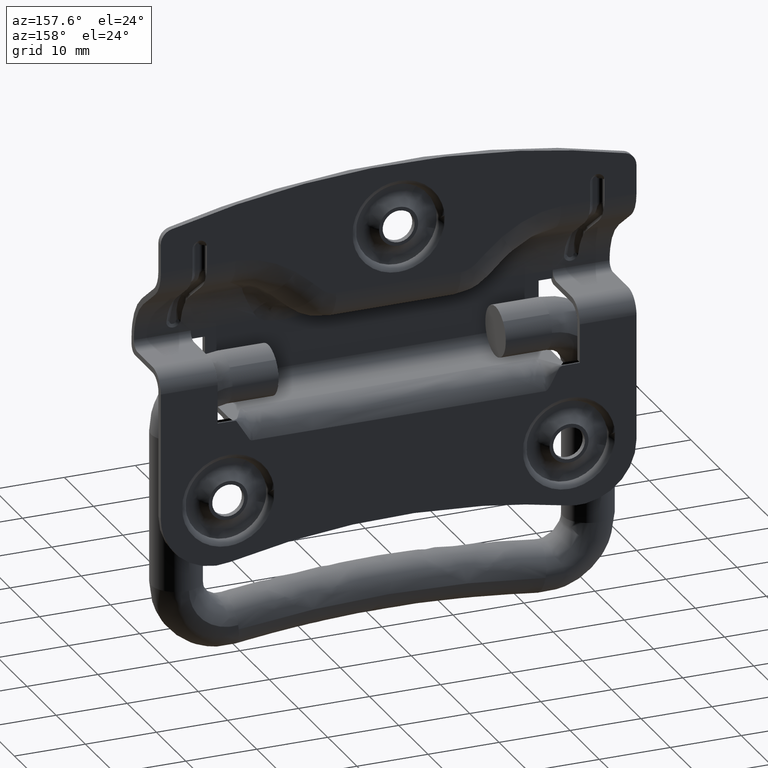
[diagram: clean part render]
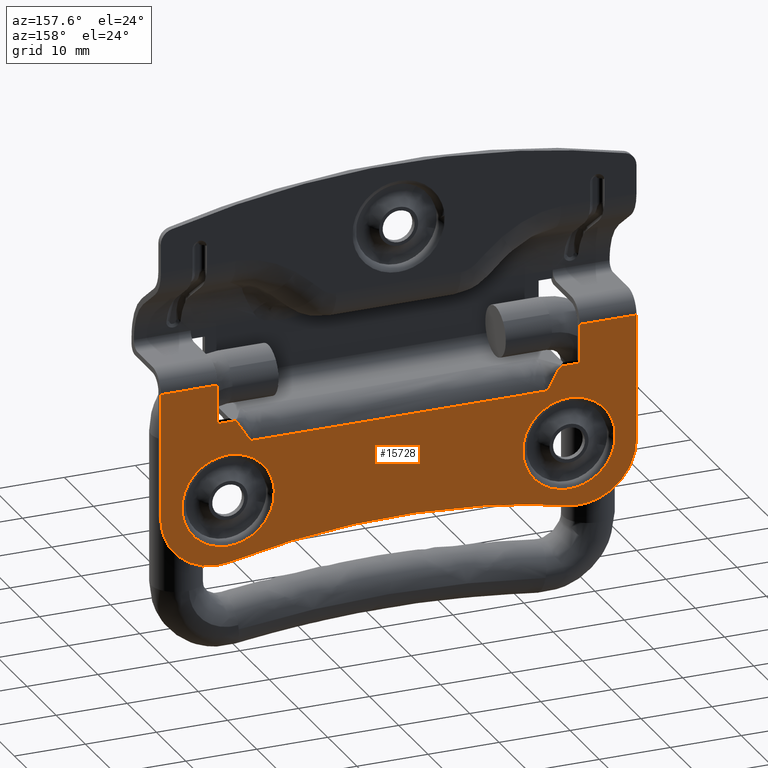
[diagram: same view with one face highlighted and labeled with its STEP entity id]
A machine part, auxiliary view. The second image highlights one B-rep face of the part: STEP entity #15728.
In plain terms, the highlighted face is a freeform B-spline surface patch.
Its self-contained STEP definition (entity closure, byte-faithful):
#3528=CARTESIAN_POINT('',(30.499486549826340,5.699999999999829,-15.081679257638990));
#3529=VERTEX_POINT('',#3528);
#3543=CARTESIAN_POINT('',(24.0,5.699999999999901,-21.499999999999702));
#3544=VERTEX_POINT('',#3543);
#3545=CARTESIAN_POINT('',(24.0,5.699999999999901,-21.499999999999702));
#3546=CARTESIAN_POINT('',(30.418827541667767,5.699999999999899,-21.499999999999698));
#3547=CARTESIAN_POINT('',(30.499486549826340,5.699999999999829,-15.081679257638990));
#3555=(BOUNDED_CURVE()B_SPLINE_CURVE(2,(#3545,#3546,#3547),.UNSPECIFIED.,.F.,.U.)B_SPLINE_CURVE_WITH_KNOTS((3,3),(0.0,0.247784295846942),.UNSPECIFIED.)CURVE()GEOMETRIC_REPRESENTATION_ITEM()RATIONAL_B_SPLINE_CURVE((1.0,0.709702640071857,0.994854295471884))REPRESENTATION_ITEM(''));
#3556=EDGE_CURVE('',#3544,#3529,#3555,.T.);
#3558=CARTESIAN_POINT('',(17.515823357008809,5.699999999999829,-14.546733880854390));
#3559=VERTEX_POINT('',#3558);
#3560=CARTESIAN_POINT('',(17.515823357008809,5.699999999999829,-14.546733880854394));
#3561=CARTESIAN_POINT('',(17.500000000000004,5.699999999999901,-14.773090746344593));
#3562=CARTESIAN_POINT('',(17.500000000000000,5.699999999999901,-14.999999999999700));
#3563=CARTESIAN_POINT('',(17.500000000000000,5.699999999999900,-21.499999999999702));
#3564=CARTESIAN_POINT('',(24.0,5.699999999999901,-21.499999999999702));
#3572=(BOUNDED_CURVE()B_SPLINE_CURVE(2,(#3560,#3561,#3562,#3563,#3564),.UNSPECIFIED.,.F.,.U.)B_SPLINE_CURVE_WITH_KNOTS((3,2,3),(0.737833686510321,0.750000000000000,1.0),.UNSPECIFIED.)CURVE()GEOMETRIC_REPRESENTATION_ITEM()RATIONAL_B_SPLINE_CURVE((0.972879876334583,0.985746277123657,1.0,0.707106781186547,1.0))REPRESENTATION_ITEM(''));
#3573=EDGE_CURVE('',#3559,#3544,#3572,.T.);
#3617=CARTESIAN_POINT('',(24.0,5.699999999999901,-8.499999999999702));
#3618=VERTEX_POINT('',#3617);
#3619=CARTESIAN_POINT('',(24.0,5.699999999999901,-8.499999999999702));
#3620=CARTESIAN_POINT('',(17.938510493643680,5.699999999999900,-8.499999999999703));
#3621=CARTESIAN_POINT('',(17.515823357008806,5.699999999999829,-14.546733880854388));
#3629=(BOUNDED_CURVE()B_SPLINE_CURVE(2,(#3619,#3620,#3621),.UNSPECIFIED.,.F.,.U.)B_SPLINE_CURVE_WITH_KNOTS((3,3),(0.500000000000000,0.737833686510320),.UNSPECIFIED.)CURVE()GEOMETRIC_REPRESENTATION_ITEM()RATIONAL_B_SPLINE_CURVE((1.0,0.721360504062891,0.972879876334583))REPRESENTATION_ITEM(''));
#3630=EDGE_CURVE('',#3618,#3559,#3629,.T.);
#3632=CARTESIAN_POINT('',(30.499486549826347,5.699999999999829,-15.081679257638994));
#3633=CARTESIAN_POINT('',(30.499999999999996,5.699999999999901,-15.040841243329083));
#3634=CARTESIAN_POINT('',(30.500000000000000,5.699999999999901,-14.999999999999700));
#3635=CARTESIAN_POINT('',(30.500000000000004,5.699999999999900,-8.499999999999702));
#3636=CARTESIAN_POINT('',(24.0,5.699999999999901,-8.499999999999702));
#3644=(BOUNDED_CURVE()B_SPLINE_CURVE(2,(#3632,#3633,#3634,#3635,#3636),.UNSPECIFIED.,.F.,.U.)B_SPLINE_CURVE_WITH_KNOTS((3,2,3),(0.247784295846942,0.250000000000000,0.500000000000000),.UNSPECIFIED.)CURVE()GEOMETRIC_REPRESENTATION_ITEM()RATIONAL_B_SPLINE_CURVE((0.994854295471884,0.997404141114690,1.0,0.707106781186547,1.0))REPRESENTATION_ITEM(''));
#3645=EDGE_CURVE('',#3529,#3618,#3644,.T.);
#4298=CARTESIAN_POINT('',(-17.500513450173660,5.699999999999829,-15.081679257638990));
#4299=VERTEX_POINT('',#4298);
#4313=CARTESIAN_POINT('',(-24.0,5.699999999999901,-21.499999999999702));
#4314=VERTEX_POINT('',#4313);
#4315=CARTESIAN_POINT('',(-24.0,5.699999999999901,-21.499999999999702));
#4316=CARTESIAN_POINT('',(-17.581172458332240,5.699999999999900,-21.499999999999709));
#4317=CARTESIAN_POINT('',(-17.500513450173656,5.699999999999829,-15.081679257638998));
#4325=(BOUNDED_CURVE()B_SPLINE_CURVE(2,(#4315,#4316,#4317),.UNSPECIFIED.,.F.,.U.)B_SPLINE_CURVE_WITH_KNOTS((3,3),(0.0,0.247784295846942),.UNSPECIFIED.)CURVE()GEOMETRIC_REPRESENTATION_ITEM()RATIONAL_B_SPLINE_CURVE((1.0,0.709702640071858,0.994854295471883))REPRESENTATION_ITEM(''));
#4326=EDGE_CURVE('',#4314,#4299,#4325,.T.);
#4328=CARTESIAN_POINT('',(-30.484176642991191,5.699999999999829,-14.546733880854390));
#4329=VERTEX_POINT('',#4328);
#4330=CARTESIAN_POINT('',(-30.484176642991198,5.699999999999829,-14.546733880854394));
#4331=CARTESIAN_POINT('',(-30.500000000000000,5.699999999999901,-14.773090746344593));
#4332=CARTESIAN_POINT('',(-30.500000000000000,5.699999999999901,-14.999999999999700));
#4333=CARTESIAN_POINT('',(-30.500000000000004,5.699999999999900,-21.499999999999702));
#4334=CARTESIAN_POINT('',(-24.0,5.699999999999901,-21.499999999999702));
#4342=(BOUNDED_CURVE()B_SPLINE_CURVE(2,(#4330,#4331,#4332,#4333,#4334),.UNSPECIFIED.,.F.,.U.)B_SPLINE_CURVE_WITH_KNOTS((3,2,3),(0.737833686510321,0.750000000000000,1.0),.UNSPECIFIED.)CURVE()GEOMETRIC_REPRESENTATION_ITEM()RATIONAL_B_SPLINE_CURVE((0.972879876334583,0.985746277123657,1.0,0.707106781186547,1.0))REPRESENTATION_ITEM(''));
#4343=EDGE_CURVE('',#4329,#4314,#4342,.T.);
#4387=CARTESIAN_POINT('',(-24.0,5.699999999999901,-8.499999999999702));
#4388=VERTEX_POINT('',#4387);
#4389=CARTESIAN_POINT('',(-24.0,5.699999999999901,-8.499999999999702));
#4390=CARTESIAN_POINT('',(-30.061489506356317,5.699999999999900,-8.499999999999703));
#4391=CARTESIAN_POINT('',(-30.484176642991194,5.699999999999829,-14.546733880854388));
#4399=(BOUNDED_CURVE()B_SPLINE_CURVE(2,(#4389,#4390,#4391),.UNSPECIFIED.,.F.,.U.)B_SPLINE_CURVE_WITH_KNOTS((3,3),(0.500000000000000,0.737833686510320),.UNSPECIFIED.)CURVE()GEOMETRIC_REPRESENTATION_ITEM()RATIONAL_B_SPLINE_CURVE((1.0,0.721360504062891,0.972879876334583))REPRESENTATION_ITEM(''));
#4400=EDGE_CURVE('',#4388,#4329,#4399,.T.);
#4402=CARTESIAN_POINT('',(-17.500513450173663,5.699999999999829,-15.081679257638994));
#4403=CARTESIAN_POINT('',(-17.499999999999996,5.699999999999900,-15.040841243329083));
#4404=CARTESIAN_POINT('',(-17.500000000000000,5.699999999999901,-14.999999999999700));
#4405=CARTESIAN_POINT('',(-17.500000000000000,5.699999999999900,-8.499999999999702));
#4406=CARTESIAN_POINT('',(-24.0,5.699999999999901,-8.499999999999702));
#4414=(BOUNDED_CURVE()B_SPLINE_CURVE(2,(#4402,#4403,#4404,#4405,#4406),.UNSPECIFIED.,.F.,.U.)B_SPLINE_CURVE_WITH_KNOTS((3,2,3),(0.247784295846942,0.250000000000000,0.500000000000000),.UNSPECIFIED.)CURVE()GEOMETRIC_REPRESENTATION_ITEM()RATIONAL_B_SPLINE_CURVE((0.994854295471884,0.997404141114690,1.0,0.707106781186547,1.0))REPRESENTATION_ITEM(''));
#4415=EDGE_CURVE('',#4299,#4388,#4414,.T.);
#5387=CARTESIAN_POINT('',(-33.500000000000000,5.699999999999930,-16.000238447630402));
#5388=VERTEX_POINT('',#5387);
#5394=CARTESIAN_POINT('',(-23.771186440678001,5.699999999999930,-23.811205332536801));
#5395=VERTEX_POINT('',#5394);
#5396=CARTESIAN_POINT('',(-33.500000000000000,5.699999999999930,-16.000238447630402));
#5397=CARTESIAN_POINT('',(-33.500000000000007,5.699999999999930,-19.836637631150399));
#5398=CARTESIAN_POINT('',(-30.508467406573789,5.699999999999930,-22.238447664808682));
#5399=CARTESIAN_POINT('',(-27.516934813147579,5.699999999999930,-24.640257698466957));
#5400=CARTESIAN_POINT('',(-23.771186440678001,5.699999999999930,-23.811205332536801));
#5408=(BOUNDED_CURVE()B_SPLINE_CURVE(2,(#5396,#5397,#5398,#5399,#5400),.UNSPECIFIED.,.F.,.U.)B_SPLINE_CURVE_WITH_KNOTS((3,2,3),(0.0,0.500000000000000,1.0),.UNSPECIFIED.)CURVE()GEOMETRIC_REPRESENTATION_ITEM()RATIONAL_B_SPLINE_CURVE((1.0,0.901681325586186,1.0,0.901681325586186,1.0))REPRESENTATION_ITEM(''));
#5409=EDGE_CURVE('',#5388,#5395,#5408,.T.);
#5434=CARTESIAN_POINT('',(23.771186440677951,5.699999999999930,-23.811205332536801));
#5435=VERTEX_POINT('',#5434);
#5436=CARTESIAN_POINT('',(23.771186440677951,5.699999999999930,-23.811205332536801));
#5437=CARTESIAN_POINT('',(4.857226E-014,5.699999999999930,-18.549891330652347));
#5438=CARTESIAN_POINT('',(-23.771186440678001,5.699999999999930,-23.811205332536801));
#5446=(BOUNDED_CURVE()B_SPLINE_CURVE(2,(#5436,#5437,#5438),.UNSPECIFIED.,.F.,.U.)CURVE()GEOMETRIC_REPRESENTATION_ITEM()QUASI_UNIFORM_CURVE()RATIONAL_B_SPLINE_CURVE((1.0,0.976370860613299,1.0))REPRESENTATION_ITEM(''));
#5447=EDGE_CURVE('',#5435,#5395,#5446,.T.);
#5504=CARTESIAN_POINT('',(33.500000000000000,5.699999999999930,-16.000238447630402));
#5505=VERTEX_POINT('',#5504);
#5506=CARTESIAN_POINT('',(23.771186440677951,5.699999999999930,-23.811205332536790));
#5507=CARTESIAN_POINT('',(27.516934813147547,5.699999999999930,-24.640257698466968));
#5508=CARTESIAN_POINT('',(30.508467406573772,5.699999999999930,-22.238447664808689));
#5509=CARTESIAN_POINT('',(33.500000000000000,5.699999999999930,-19.836637631150413));
#5510=CARTESIAN_POINT('',(33.500000000000000,5.699999999999930,-16.000238447630402));
#5518=(BOUNDED_CURVE()B_SPLINE_CURVE(2,(#5506,#5507,#5508,#5509,#5510),.UNSPECIFIED.,.F.,.U.)B_SPLINE_CURVE_WITH_KNOTS((3,2,3),(0.0,0.500000000000000,1.0),.UNSPECIFIED.)CURVE()GEOMETRIC_REPRESENTATION_ITEM()RATIONAL_B_SPLINE_CURVE((1.0,0.901681325586186,1.0,0.901681325586186,1.0))REPRESENTATION_ITEM(''));
#5519=EDGE_CURVE('',#5435,#5505,#5518,.T.);
#5752=CARTESIAN_POINT('',(25.500000000000000,5.699999999999901,-3.800000000000000));
#5753=VERTEX_POINT('',#5752);
#5769=CARTESIAN_POINT('',(-25.500000000000000,5.700000000000000,-3.800000000000000));
#5770=VERTEX_POINT('',#5769);
#5771=CARTESIAN_POINT('',(-25.500000000000011,5.700000000000000,-3.800000000000000));
#5772=CARTESIAN_POINT('',(-24.690476190476229,5.700000000000000,-3.800000000000000));
#5773=CARTESIAN_POINT('',(-23.880952380952440,5.700000000000000,-3.800000000000000));
#5774=CARTESIAN_POINT('',(-23.071428571428651,5.700000000000000,-3.800000000000000));
#5775=CARTESIAN_POINT('',(-22.261904761904798,5.700000000000000,-3.800000000000000));
#5776=CARTESIAN_POINT('',(-21.452380952380999,5.700000000000000,-7.0));
#5777=CARTESIAN_POINT('',(-20.642857142857199,5.700000000000000,-7.0));
#5778=CARTESIAN_POINT('',(-6.880952380952430,5.700000000000000,-7.0));
#5779=CARTESIAN_POINT('',(6.880952380952320,5.700000000000000,-7.0));
#5780=CARTESIAN_POINT('',(20.642857142857100,5.700000000000000,-7.0));
#5781=CARTESIAN_POINT('',(21.452380952380899,5.700000000000000,-7.0));
#5782=CARTESIAN_POINT('',(22.261904761904699,5.700000000000000,-3.800000000000000));
#5783=CARTESIAN_POINT('',(23.071428571428552,5.700000000000000,-3.800000000000000));
#5784=CARTESIAN_POINT('',(23.880952380952369,5.700000000000000,-3.800000000000000));
#5785=CARTESIAN_POINT('',(24.690476190476179,5.700000000000000,-3.800000000000000));
#5786=CARTESIAN_POINT('',(25.500000000000000,5.699999999999901,-3.800000000000000));
#5787=B_SPLINE_CURVE_WITH_KNOTS('',3,(#5771,#5772,#5773,#5774,#5775,#5776,#5777,#5778,#5779,#5780,#5781,#5782,#5783,#5784,#5785,#5786),.UNSPECIFIED.,.F.,.U.,(4,3,3,3,3,4),(0.400000000000000,0.409523809523809,0.419047619047618,0.580952380952380,0.590476190476190,0.599999999999999),.UNSPECIFIED.);
#5788=EDGE_CURVE('',#5770,#5753,#5787,.T.);
#6036=CARTESIAN_POINT('',(-33.500000000000000,5.699999999999901,1.700000000000000));
#6037=VERTEX_POINT('',#6036);
#6058=CARTESIAN_POINT('',(-25.500000000000000,5.699999999999901,1.700000000000000));
#6059=VERTEX_POINT('',#6058);
#6073=CARTESIAN_POINT('',(-33.500000000000000,5.699999999999901,1.700000000000000));
#6074=CARTESIAN_POINT('',(-25.500000000000000,5.699999999999901,1.700000000000000));
#6075=QUASI_UNIFORM_CURVE('',1,(#6073,#6074),.UNSPECIFIED.,.F.,.U.);
#6076=EDGE_CURVE('',#6037,#6059,#6075,.T.);
#6095=CARTESIAN_POINT('',(33.500000000000000,5.699999999999901,1.700000000000000));
#6096=VERTEX_POINT('',#6095);
#6112=CARTESIAN_POINT('',(25.500000000000000,5.699999999999901,1.700000000000000));
#6113=VERTEX_POINT('',#6112);
#6114=CARTESIAN_POINT('',(25.500000000000000,5.699999999999901,1.700000000000000));
#6115=CARTESIAN_POINT('',(33.500000000000000,5.699999999999901,1.700000000000000));
#6116=QUASI_UNIFORM_CURVE('',1,(#6114,#6115),.UNSPECIFIED.,.F.,.U.);
#6117=EDGE_CURVE('',#6113,#6096,#6116,.T.);
#14449=CARTESIAN_POINT('',(25.500000000000000,5.699999999999901,1.700000000000000));
#14450=CARTESIAN_POINT('',(25.500000000000000,5.699999999999901,-3.800000000000000));
#14451=QUASI_UNIFORM_CURVE('',1,(#14449,#14450),.UNSPECIFIED.,.F.,.U.);
#14452=EDGE_CURVE('',#6113,#5753,#14451,.T.);
#14599=CARTESIAN_POINT('',(-25.500000000000000,5.700000000000000,-3.800000000000000));
#14600=CARTESIAN_POINT('',(-25.500000000000000,5.699999999999901,1.700000000000000));
#14601=QUASI_UNIFORM_CURVE('',1,(#14599,#14600),.UNSPECIFIED.,.F.,.U.);
#14602=EDGE_CURVE('',#5770,#6059,#14601,.T.);
#15538=CARTESIAN_POINT('',(-33.500000000000000,5.699999999999901,1.700000000000000));
#15539=CARTESIAN_POINT('',(-33.500000000000000,5.699999999999930,-16.000238447630402));
#15540=QUASI_UNIFORM_CURVE('',1,(#15538,#15539),.UNSPECIFIED.,.F.,.U.);
#15541=EDGE_CURVE('',#6037,#5388,#15540,.T.);
#15557=CARTESIAN_POINT('',(33.500000000000000,5.699999999999901,1.700000000000000));
#15558=CARTESIAN_POINT('',(33.500000000000000,5.699999999999930,-16.000238447630402));
#15559=QUASI_UNIFORM_CURVE('',1,(#15557,#15558),.UNSPECIFIED.,.F.,.U.);
#15560=EDGE_CURVE('',#6096,#5505,#15559,.T.);
#15699=CARTESIAN_POINT('',(-36.846649870141000,5.699999999999901,-25.282173106891861));
#15700=CARTESIAN_POINT('',(-36.846649870141000,5.699999999999901,2.983642288189297));
#15701=CARTESIAN_POINT('',(36.846651667221039,5.699999999999901,-25.282173106891861));
#15702=CARTESIAN_POINT('',(36.846651667221039,5.699999999999901,2.983642288189297));
#15703=B_SPLINE_SURFACE_WITH_KNOTS('',1,1,((#15699,#15701),(#15700,#15702)),.UNSPECIFIED.,.F.,.F.,.U.,(2,2),(2,2),(0.0,28.265815395081159),(0.0,73.693301537362032),.UNSPECIFIED.);
#15704=ORIENTED_EDGE('',*,*,#5519,.F.);
#15705=ORIENTED_EDGE('',*,*,#5447,.T.);
#15706=ORIENTED_EDGE('',*,*,#5409,.F.);
#15707=ORIENTED_EDGE('',*,*,#15541,.F.);
#15708=ORIENTED_EDGE('',*,*,#6076,.T.);
#15709=ORIENTED_EDGE('',*,*,#14602,.F.);
#15710=ORIENTED_EDGE('',*,*,#5788,.T.);
#15711=ORIENTED_EDGE('',*,*,#14452,.F.);
#15712=ORIENTED_EDGE('',*,*,#6117,.T.);
#15713=ORIENTED_EDGE('',*,*,#15560,.T.);
#15714=EDGE_LOOP('',(#15704,#15705,#15706,#15707,#15708,#15709,#15710,#15711,#15712,#15713));
#15715=FACE_OUTER_BOUND('',#15714,.T.);
#15716=ORIENTED_EDGE('',*,*,#4326,.T.);
#15717=ORIENTED_EDGE('',*,*,#4415,.T.);
#15718=ORIENTED_EDGE('',*,*,#4400,.T.);
#15719=ORIENTED_EDGE('',*,*,#4343,.T.);
#15720=EDGE_LOOP('',(#15716,#15717,#15718,#15719));
#15721=FACE_BOUND('',#15720,.T.);
#15722=ORIENTED_EDGE('',*,*,#3556,.T.);
#15723=ORIENTED_EDGE('',*,*,#3645,.T.);
#15724=ORIENTED_EDGE('',*,*,#3630,.T.);
#15725=ORIENTED_EDGE('',*,*,#3573,.T.);
#15726=EDGE_LOOP('',(#15722,#15723,#15724,#15725));
#15727=FACE_BOUND('',#15726,.T.);
#15728=ADVANCED_FACE('',(#15715,#15721,#15727),#15703,.T.);